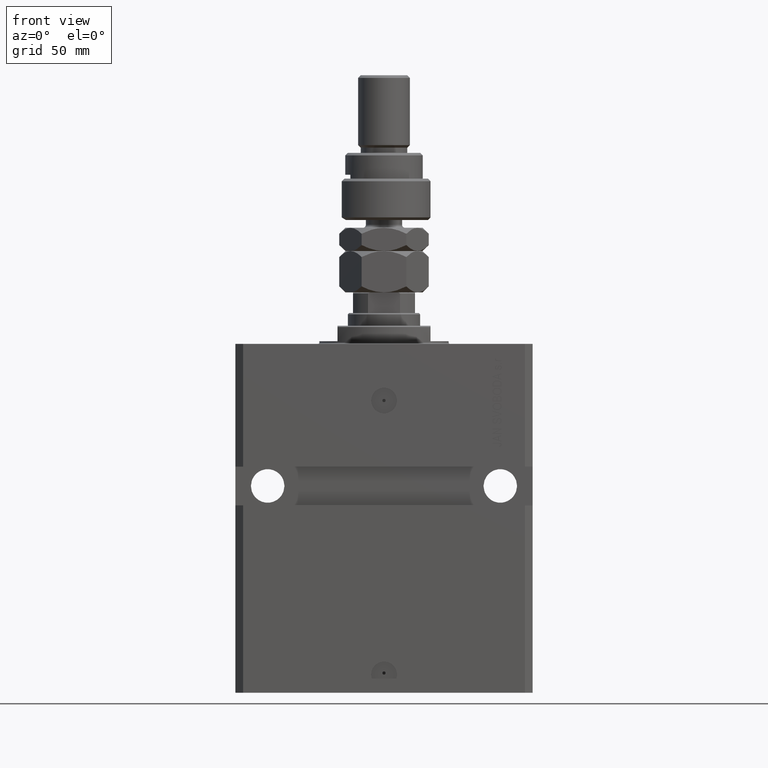
[diagram: clean part render]
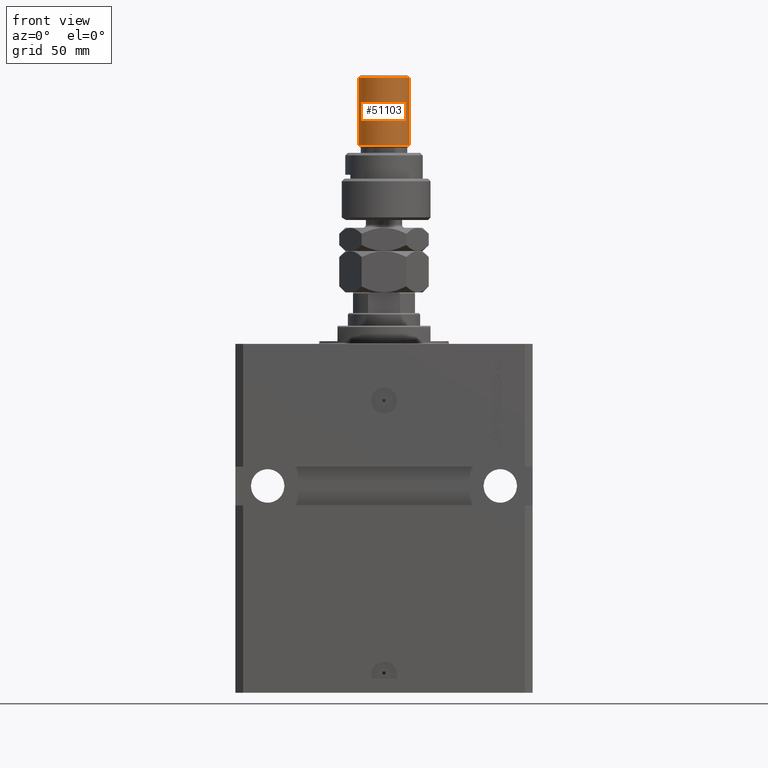
[diagram: same view with one face highlighted and labeled with its STEP entity id]
A machine part, front view. The second image highlights one B-rep face of the part: STEP entity #51103.
In plain terms, the highlighted cylindrical surface (edge-blend (fillet) strip) has radius 10 mm, axis along (-0, -0, -1).
Its self-contained STEP definition (entity closure, byte-faithful):
#736 = CARTESIAN_POINT ( 'NONE',  ( 10.00000000000000000, 1.224646799147353256E-15, 56.00000000000000711 ) ) ;
#6794 = EDGE_CURVE ( 'NONE', #38163, #26410, #29262, .T. ) ;
#8720 = EDGE_CURVE ( 'NONE', #14642, #26410, #20270, .T. ) ;
#10925 = ORIENTED_EDGE ( 'NONE', *, *, #6794, .T. ) ;
#11123 = CARTESIAN_POINT ( 'NONE',  ( 10.00000000000000000, 1.224646799147353256E-15, 29.00000000000000711 ) ) ;
#12537 = LINE ( 'NONE', #40391, #50276 ) ;
#14397 = CARTESIAN_POINT ( 'NONE',  ( 10.00000000000000000, 1.224646799147353256E-15, 54.99999999999998579 ) ) ;
#14642 = VERTEX_POINT ( 'NONE', #14397 ) ;
#14934 = ORIENTED_EDGE ( 'NONE', *, *, #8720, .F. ) ;
#16708 = VECTOR ( 'NONE', #48127, 1000.000000000000000 ) ;
#16855 = EDGE_CURVE ( 'NONE', #30755, #38163, #12537, .T. ) ;
#20270 = LINE ( 'NONE', #736, #16708 ) ;
#20867 = EDGE_CURVE ( 'NONE', #14642, #30755, #31420, .T. ) ;
#21466 = AXIS2_PLACEMENT_3D ( 'NONE', #43106, #35308, #38437 ) ;
#23945 = CARTESIAN_POINT ( 'NONE',  ( 0.000000000000000000, 0.000000000000000000, 56.00000000000000711 ) ) ;
#24327 = EDGE_LOOP ( 'NONE', ( #14934, #39543, #50320, #10925 ) ) ;
#24542 = CARTESIAN_POINT ( 'NONE',  ( 0.000000000000000000, 0.000000000000000000, 29.00000000000000711 ) ) ;
#24959 = CYLINDRICAL_SURFACE ( 'NONE', #40411, 10.00000000000000000 ) ;
#26410 = VERTEX_POINT ( 'NONE', #11123 ) ;
#28365 = DIRECTION ( 'NONE',  ( -0.000000000000000000, -0.000000000000000000, -1.000000000000000000 ) ) ;
#28424 = DIRECTION ( 'NONE',  ( -0.000000000000000000, -0.000000000000000000, -1.000000000000000000 ) ) ;
#29262 = CIRCLE ( 'NONE', #50889, 10.00000000000000000 ) ;
#30755 = VERTEX_POINT ( 'NONE', #51155 ) ;
#31420 = CIRCLE ( 'NONE', #21466, 10.00000000000000000 ) ;
#35308 = DIRECTION ( 'NONE',  ( 0.000000000000000000, 0.000000000000000000, -1.000000000000000000 ) ) ;
#36688 = FACE_OUTER_BOUND ( 'NONE', #24327, .T. ) ;
#38163 = VERTEX_POINT ( 'NONE', #48639 ) ;
#38437 = DIRECTION ( 'NONE',  ( 1.000000000000000000, 0.000000000000000000, 0.000000000000000000 ) ) ;
#39543 = ORIENTED_EDGE ( 'NONE', *, *, #20867, .T. ) ;
#39828 = DIRECTION ( 'NONE',  ( -1.000000000000000000, 0.000000000000000000, 0.000000000000000000 ) ) ;
#40391 = CARTESIAN_POINT ( 'NONE',  ( -10.00000000000000000, 0.000000000000000000, 56.00000000000000711 ) ) ;
#40411 = AXIS2_PLACEMENT_3D ( 'NONE', #23945, #28365, #39828 ) ;
#40425 = DIRECTION ( 'NONE',  ( -0.000000000000000000, -0.000000000000000000, 1.000000000000000000 ) ) ;
#43106 = CARTESIAN_POINT ( 'NONE',  ( 0.000000000000000000, 0.000000000000000000, 54.99999999999998579 ) ) ;
#48127 = DIRECTION ( 'NONE',  ( -0.000000000000000000, -0.000000000000000000, -1.000000000000000000 ) ) ;
#48639 = CARTESIAN_POINT ( 'NONE',  ( -10.00000000000000000, 0.000000000000000000, 29.00000000000000711 ) ) ;
#49012 = DIRECTION ( 'NONE',  ( 1.000000000000000000, 0.000000000000000000, 0.000000000000000000 ) ) ;
#50276 = VECTOR ( 'NONE', #28424, 1000.000000000000000 ) ;
#50320 = ORIENTED_EDGE ( 'NONE', *, *, #16855, .T. ) ;
#50889 = AXIS2_PLACEMENT_3D ( 'NONE', #24542, #40425, #49012 ) ;
#51103 = ADVANCED_FACE ( 'NONE', ( #36688 ), #24959, .T. ) ;
#51155 = CARTESIAN_POINT ( 'NONE',  ( -10.00000000000000000, 0.000000000000000000, 54.99999999999998579 ) ) ;